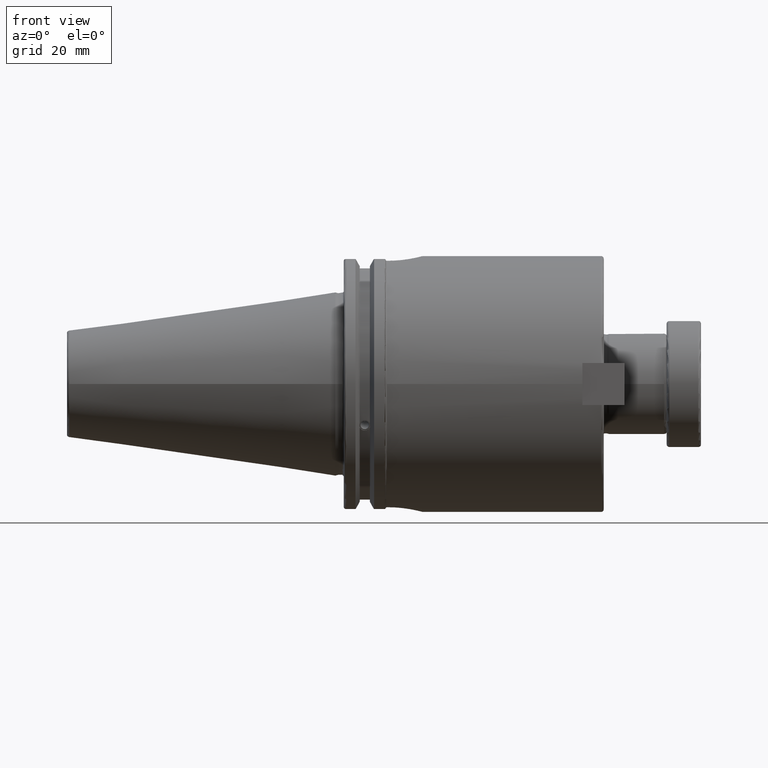
[diagram: clean part render]
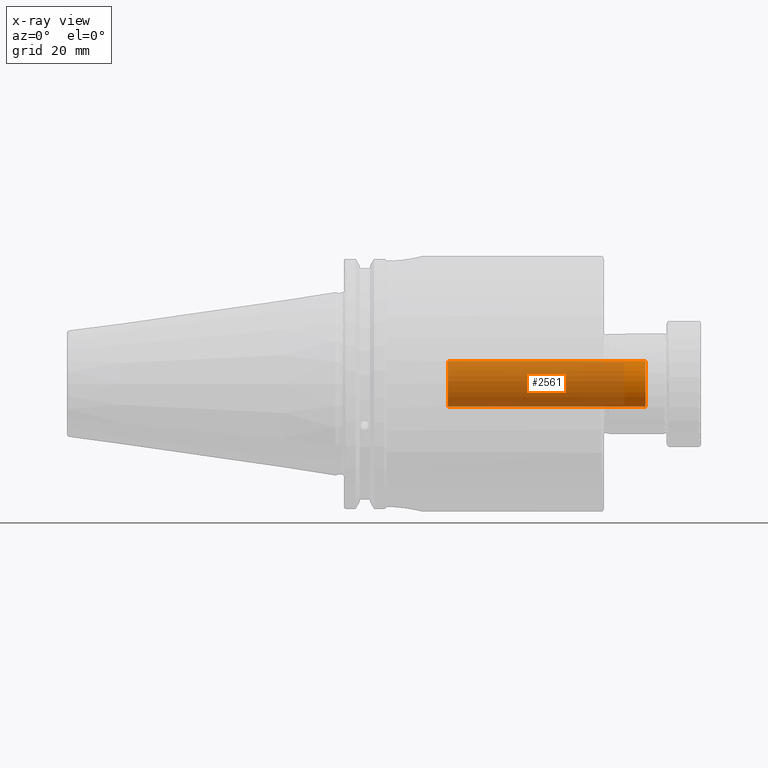
[diagram: x-ray — body ghosted, one internal face saturated and labeled with its STEP entity id]
A machine part, front view, then the same camera in x-ray: the body is ghosted and one INTERNAL B-rep face — a face not visible from any outside direction — is saturated and labeled: STEP entity #2561.
In plain terms, the highlighted cylindrical surface (bore or boss wall) has radius 8.6614 mm, axis along (1, 0, 0).
Its self-contained STEP definition (entity closure, byte-faithful):
#85=CYLINDRICAL_SURFACE('',#2831,8.6614);
#210=CIRCLE('',#2826,8.6614);
#211=CIRCLE('',#2827,8.6614);
#214=CIRCLE('',#2832,8.6614);
#375=FACE_OUTER_BOUND('',#520,.T.);
#520=EDGE_LOOP('',(#1846,#1847,#1848,#1849,#1850));
#687=LINE('',#4269,#837);
#837=VECTOR('',#3283,8.6614);
#1068=VERTEX_POINT('',#4180);
#1069=VERTEX_POINT('',#4182);
#1075=VERTEX_POINT('',#4267);
#1370=EDGE_CURVE('',#1069,#1068,#210,.T.);
#1371=EDGE_CURVE('',#1068,#1069,#211,.T.);
#1379=EDGE_CURVE('',#1075,#1075,#214,.T.);
#1380=EDGE_CURVE('',#1075,#1069,#687,.T.);
#1846=ORIENTED_EDGE('',*,*,#1379,.F.);
#1847=ORIENTED_EDGE('',*,*,#1380,.T.);
#1848=ORIENTED_EDGE('',*,*,#1370,.T.);
#1849=ORIENTED_EDGE('',*,*,#1371,.T.);
#1850=ORIENTED_EDGE('',*,*,#1380,.F.);
#2561=ADVANCED_FACE('',(#375),#85,.F.);
#2826=AXIS2_PLACEMENT_3D('',#4183,#3268,#3269);
#2827=AXIS2_PLACEMENT_3D('',#4184,#3270,#3271);
#2831=AXIS2_PLACEMENT_3D('',#4266,#3279,#3280);
#2832=AXIS2_PLACEMENT_3D('',#4268,#3281,#3282);
#3268=DIRECTION('center_axis',(-1.,0.,0.));
#3269=DIRECTION('ref_axis',(0.,0.,-1.));
#3270=DIRECTION('center_axis',(-1.,0.,0.));
#3271=DIRECTION('ref_axis',(0.,0.,-1.));
#3279=DIRECTION('center_axis',(1.,0.,0.));
#3280=DIRECTION('ref_axis',(0.,0.,-1.));
#3281=DIRECTION('center_axis',(-1.,0.,0.));
#3282=DIRECTION('ref_axis',(0.,0.,-1.));
#3283=DIRECTION('',(-1.,0.,0.));
#4180=CARTESIAN_POINT('',(42.654957488901,-1.06071557861349E-15,-8.6614));
#4182=CARTESIAN_POINT('',(42.654957488901,1.06071557861349E-15,8.6614));
#4183=CARTESIAN_POINT('Origin',(42.654957488901,0.,0.));
#4184=CARTESIAN_POINT('Origin',(42.654957488901,0.,0.));
#4266=CARTESIAN_POINT('Origin',(-140.295467400097,0.,0.));
#4267=CARTESIAN_POINT('',(117.423966737315,1.06071557861349E-15,8.6614));
#4268=CARTESIAN_POINT('Origin',(117.423966737315,0.,0.));
#4269=CARTESIAN_POINT('',(-140.295467400097,-1.06071557861349E-15,8.6614));